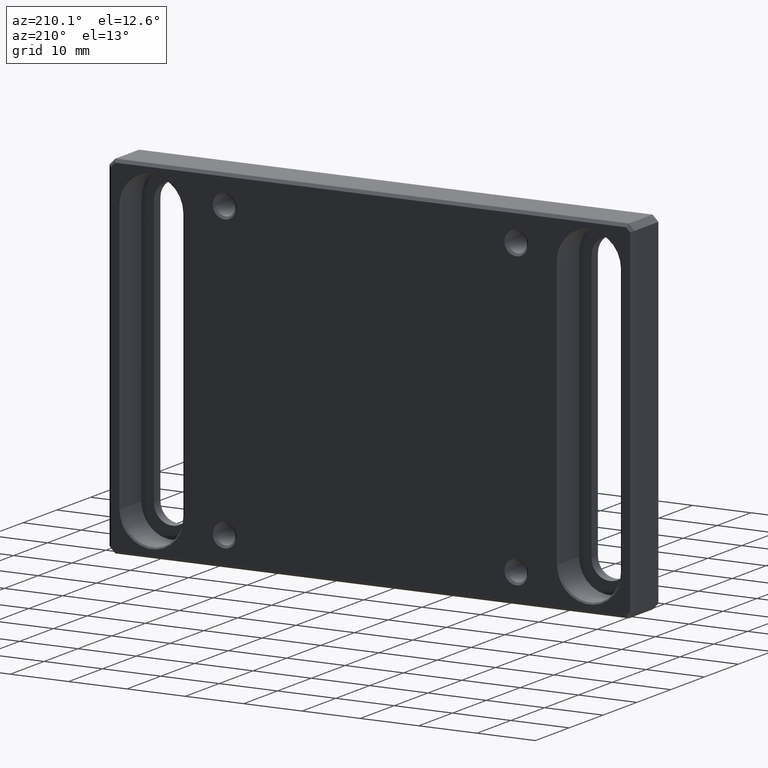
[diagram: clean part render]
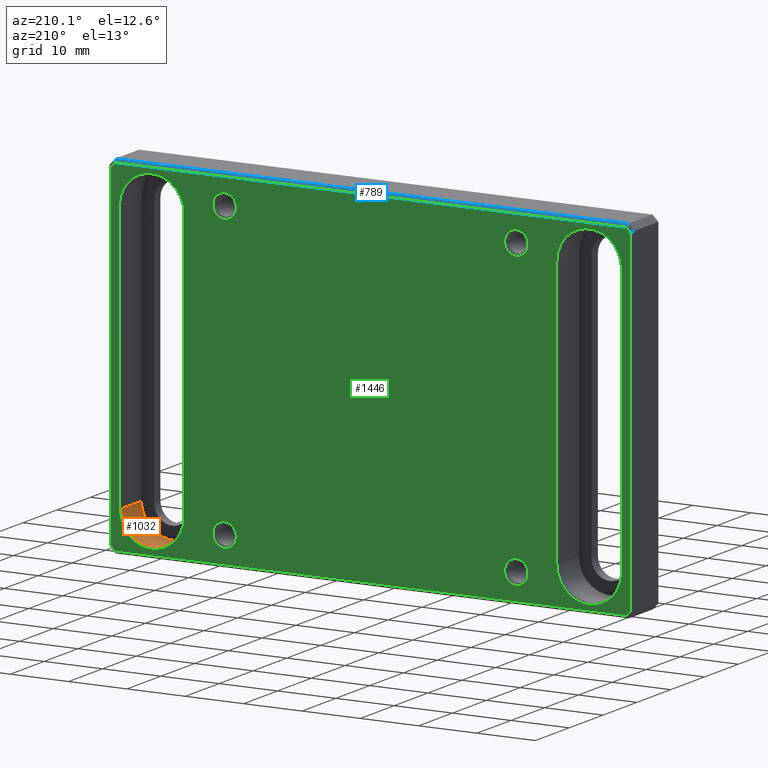
[diagram: same view with three faces highlighted in distinct colors, each labeled with its STEP entity id]
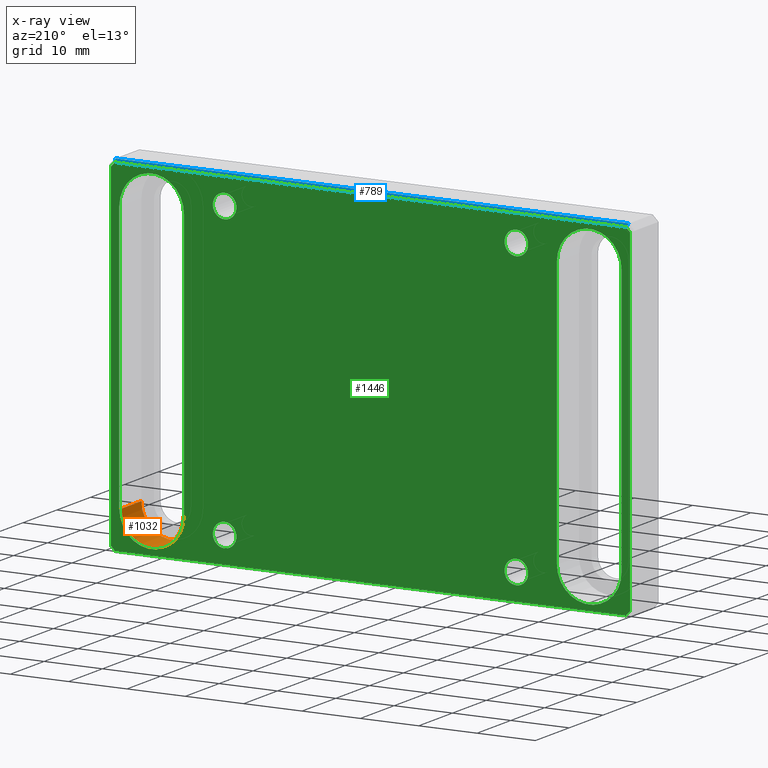
[diagram: x-ray of the same camera — body ghosted, the three highlighted faces saturated]
A machine part, auxiliary view with three faces highlighted in distinct colors.
The next image is the same camera in x-ray (body ghosted, the three faces saturated) — at least one of them is partly hidden behind the body in this view.
Their STEP definitions:

[orange] entity #1032 — the highlighted cylindrical surface (edge-blend (fillet) strip) has radius 5.3 mm, axis along (-0, 1, -0).
#102 = ORIENTED_EDGE ( 'NONE', *, *, #1346, .F. ) ;
#119 = DIRECTION ( 'NONE',  ( -0.000000000000000000, 1.000000000000000000, -0.000000000000000000 ) ) ;
#136 = LINE ( 'NONE', #1702, #1061 ) ;
#154 = CARTESIAN_POINT ( 'NONE',  ( 37.50000000000000711, 1.900000000000000577, -23.00000000000000355 ) ) ;
#168 = CYLINDRICAL_SURFACE ( 'NONE', #1407, 5.299999999999998934 ) ;
#244 = AXIS2_PLACEMENT_3D ( 'NONE', #1457, #1302, #644 ) ;
#419 = VERTEX_POINT ( 'NONE', #949 ) ;
#423 = CARTESIAN_POINT ( 'NONE',  ( 32.20000000000000284, 7.750000000000000000, -23.00000000000000355 ) ) ;
#435 = DIRECTION ( 'NONE',  ( -0.000000000000000000, 1.000000000000000000, -0.000000000000000000 ) ) ;
#551 = AXIS2_PLACEMENT_3D ( 'NONE', #1465, #1582, #1448 ) ;
#562 = FACE_OUTER_BOUND ( 'NONE', #799, .T. ) ;
#599 = ORIENTED_EDGE ( 'NONE', *, *, #957, .T. ) ;
#644 = DIRECTION ( 'NONE',  ( 0.000000000000000000, 0.000000000000000000, 1.000000000000000000 ) ) ;
#799 = EDGE_LOOP ( 'NONE', ( #599, #1041, #833, #102 ) ) ;
#833 = ORIENTED_EDGE ( 'NONE', *, *, #1430, .F. ) ;
#838 = CIRCLE ( 'NONE', #244, 5.299999999999998934 ) ;
#949 = CARTESIAN_POINT ( 'NONE',  ( 42.80000000000000426, 1.900000000000000577, -23.00000000000000355 ) ) ;
#957 = EDGE_CURVE ( 'NONE', #419, #1111, #1330, .T. ) ;
#970 = DIRECTION ( 'NONE',  ( 0.000000000000000000, 0.000000000000000000, 1.000000000000000000 ) ) ;
#1032 = ADVANCED_FACE ( 'NONE', ( #562 ), #168, .F. ) ;
#1040 = CARTESIAN_POINT ( 'NONE',  ( 42.80000000000000426, 1.900000000000000577, -23.00000000000000355 ) ) ;
#1041 = ORIENTED_EDGE ( 'NONE', *, *, #1396, .T. ) ;
#1061 = VECTOR ( 'NONE', #1571, 1000.000000000000000 ) ;
#1111 = VERTEX_POINT ( 'NONE', #1666 ) ;
#1302 = DIRECTION ( 'NONE',  ( 0.000000000000000000, 1.000000000000000000, 0.000000000000000000 ) ) ;
#1330 = LINE ( 'NONE', #1040, #1716 ) ;
#1346 = EDGE_CURVE ( 'NONE', #419, #1665, #838, .T. ) ;
#1396 = EDGE_CURVE ( 'NONE', #1111, #1549, #1498, .T. ) ;
#1407 = AXIS2_PLACEMENT_3D ( 'NONE', #154, #435, #970 ) ;
#1430 = EDGE_CURVE ( 'NONE', #1665, #1549, #136, .T. ) ;
#1448 = DIRECTION ( 'NONE',  ( 0.000000000000000000, 0.000000000000000000, 1.000000000000000000 ) ) ;
#1457 = CARTESIAN_POINT ( 'NONE',  ( 37.50000000000000711, 1.900000000000000577, -23.00000000000000355 ) ) ;
#1465 = CARTESIAN_POINT ( 'NONE',  ( 37.50000000000000711, 7.750000000000000000, -23.00000000000000355 ) ) ;
#1498 = CIRCLE ( 'NONE', #551, 5.299999999999998934 ) ;
#1549 = VERTEX_POINT ( 'NONE', #423 ) ;
#1571 = DIRECTION ( 'NONE',  ( -0.000000000000000000, 1.000000000000000000, -0.000000000000000000 ) ) ;
#1582 = DIRECTION ( 'NONE',  ( 0.000000000000000000, 1.000000000000000000, 0.000000000000000000 ) ) ;
#1665 = VERTEX_POINT ( 'NONE', #1674 ) ;
#1666 = CARTESIAN_POINT ( 'NONE',  ( 42.80000000000000426, 7.750000000000000000, -23.00000000000000355 ) ) ;
#1674 = CARTESIAN_POINT ( 'NONE',  ( 32.20000000000000284, 1.900000000000000577, -23.00000000000000355 ) ) ;
#1702 = CARTESIAN_POINT ( 'NONE',  ( 32.20000000000000284, 1.900000000000000577, -23.00000000000000355 ) ) ;
#1716 = VECTOR ( 'NONE', #119, 1000.000000000000000 ) ;

[blue] entity #789 — the highlighted planar face has unit normal (0, 0.7071, 0.7071).
#14 = CARTESIAN_POINT ( 'NONE',  ( -40.33287919356151008, 16.35321278576449799, 21.14678721423574714 ) ) ;
#222 = ORIENTED_EDGE ( 'NONE', *, *, #535, .T. ) ;
#287 = EDGE_CURVE ( 'NONE', #1012, #1501, #1288, .T. ) ;
#345 = CARTESIAN_POINT ( 'NONE',  ( -43.79289321881346808, 8.000000000000000000, 29.50000000000001066 ) ) ;
#421 = EDGE_CURVE ( 'NONE', #1501, #835, #1715, .T. ) ;
#457 = VECTOR ( 'NONE', #1587, 1000.000000000000000 ) ;
#525 = CARTESIAN_POINT ( 'NONE',  ( 40.33287919356168771, 16.35321278576431681, 21.14678721423592833 ) ) ;
#528 = CARTESIAN_POINT ( 'NONE',  ( 43.79289321881346808, 8.000000000000000000, 29.50000000000001066 ) ) ;
#535 = EDGE_CURVE ( 'NONE', #1012, #1319, #1461, .T. ) ;
#545 = LINE ( 'NONE', #1617, #1240 ) ;
#598 = AXIS2_PLACEMENT_3D ( 'NONE', #1125, #1154, #1686 ) ;
#679 = CARTESIAN_POINT ( 'NONE',  ( -44.00000000000001421, 7.500000000000000000, 30.00000000000000000 ) ) ;
#704 = ORIENTED_EDGE ( 'NONE', *, *, #421, .F. ) ;
#731 = DIRECTION ( 'NONE',  ( 1.000000000000000000, 0.000000000000000000, 0.000000000000000000 ) ) ;
#789 = ADVANCED_FACE ( 'NONE', ( #1145 ), #874, .T. ) ;
#834 = CARTESIAN_POINT ( 'NONE',  ( 44.00000000000001421, 7.500000000000000000, 30.00000000000000000 ) ) ;
#835 = VERTEX_POINT ( 'NONE', #345 ) ;
#874 = PLANE ( 'NONE',  #598 ) ;
#876 = CARTESIAN_POINT ( 'NONE',  ( -44.00000000000001421, 7.500000000000000000, 30.00000000000000000 ) ) ;
#913 = EDGE_LOOP ( 'NONE', ( #222, #1133, #704, #922 ) ) ;
#922 = ORIENTED_EDGE ( 'NONE', *, *, #287, .F. ) ;
#966 = VECTOR ( 'NONE', #1063, 1000.000000000000227 ) ;
#1012 = VERTEX_POINT ( 'NONE', #834 ) ;
#1063 = DIRECTION ( 'NONE',  ( -0.2810846377148129571, 0.6785983445458578789, -0.6785983445458391161 ) ) ;
#1105 = VECTOR ( 'NONE', #1690, 1000.000000000000000 ) ;
#1107 = EDGE_CURVE ( 'NONE', #835, #1319, #545, .T. ) ;
#1125 = CARTESIAN_POINT ( 'NONE',  ( 0.000000000000000000, 8.000000000000000000, 29.50000000000001066 ) ) ;
#1133 = ORIENTED_EDGE ( 'NONE', *, *, #1107, .F. ) ;
#1145 = FACE_OUTER_BOUND ( 'NONE', #913, .T. ) ;
#1154 = DIRECTION ( 'NONE',  ( 0.000000000000000000, 0.7071067811865378028, 0.7071067811865573427 ) ) ;
#1240 = VECTOR ( 'NONE', #731, 1000.000000000000000 ) ;
#1288 = LINE ( 'NONE', #876, #1105 ) ;
#1319 = VERTEX_POINT ( 'NONE', #528 ) ;
#1461 = LINE ( 'NONE', #525, #966 ) ;
#1501 = VERTEX_POINT ( 'NONE', #679 ) ;
#1587 = DIRECTION ( 'NONE',  ( 0.2810846377148197295, 0.6785983445458565466, -0.6785983445458377838 ) ) ;
#1617 = CARTESIAN_POINT ( 'NONE',  ( 43.99999999999998579, 8.000000000000000000, 29.50000000000001066 ) ) ;
#1686 = DIRECTION ( 'NONE',  ( -1.000000000000000000, 0.000000000000000000, 0.000000000000000000 ) ) ;
#1690 = DIRECTION ( 'NONE',  ( -1.000000000000000000, 0.000000000000000000, 0.000000000000000000 ) ) ;
#1715 = LINE ( 'NONE', #14, #457 ) ;

[green] entity #1446 — the highlighted planar face has unit normal (0, 1, 0).
#4 = EDGE_CURVE ( 'NONE', #1124, #259, #246, .T. ) ;
#18 = ORIENTED_EDGE ( 'NONE', *, *, #613, .T. ) ;
#25 = FACE_BOUND ( 'NONE', #871, .T. ) ;
#26 = VERTEX_POINT ( 'NONE', #230 ) ;
#28 = ORIENTED_EDGE ( 'NONE', *, *, #1044, .T. ) ;
#36 = AXIS2_PLACEMENT_3D ( 'NONE', #1031, #101, #61 ) ;
#39 = DIRECTION ( 'NONE',  ( -1.000000000000000000, 0.000000000000000000, 0.000000000000000000 ) ) ;
#47 = LINE ( 'NONE', #1530, #1409 ) ;
#52 = DIRECTION ( 'NONE',  ( 1.156482317317871725E-16, 0.000000000000000000, 1.000000000000000000 ) ) ;
#61 = DIRECTION ( 'NONE',  ( 0.000000000000000000, 0.000000000000000000, 1.000000000000000000 ) ) ;
#65 = CIRCLE ( 'NONE', #710, 2.024999999999999023 ) ;
#78 = LINE ( 'NONE', #1671, #828 ) ;
#101 = DIRECTION ( 'NONE',  ( -0.000000000000000000, -1.000000000000000000, -0.000000000000000000 ) ) ;
#108 = DIRECTION ( 'NONE',  ( 0.7071067811865474617, 0.000000000000000000, 0.7071067811865474617 ) ) ;
#129 = VERTEX_POINT ( 'NONE', #678 ) ;
#138 = ORIENTED_EDGE ( 'NONE', *, *, #1070, .T. ) ;
#156 = CARTESIAN_POINT ( 'NONE',  ( -44.00000000000002132, 8.000000000000000000, -29.50000000000001066 ) ) ;
#159 = VERTEX_POINT ( 'NONE', #464 ) ;
#164 = DIRECTION ( 'NONE',  ( 0.000000000000000000, 0.000000000000000000, 1.000000000000000000 ) ) ;
#179 = DIRECTION ( 'NONE',  ( -3.469446951953614189E-16, 0.000000000000000000, -1.000000000000000000 ) ) ;
#180 = CARTESIAN_POINT ( 'NONE',  ( -44.50000000000002132, 8.000000000000000000, 28.79289321881346098 ) ) ;
#182 = ORIENTED_EDGE ( 'NONE', *, *, #573, .T. ) ;
#184 = EDGE_CURVE ( 'NONE', #934, #891, #47, .T. ) ;
#199 = LINE ( 'NONE', #210, #974 ) ;
#210 = CARTESIAN_POINT ( 'NONE',  ( -36.64644660940674470, 8.000000000000000000, -36.64644660940674470 ) ) ;
#230 = CARTESIAN_POINT ( 'NONE',  ( -43.04999999999999005, 8.000000000000000000, -22.99999999999999645 ) ) ;
#246 = LINE ( 'NONE', #898, #343 ) ;
#251 = EDGE_LOOP ( 'NONE', ( #845, #28, #182, #425 ) ) ;
#259 = VERTEX_POINT ( 'NONE', #1707 ) ;
#263 = EDGE_CURVE ( 'NONE', #1445, #1445, #1106, .T. ) ;
#276 = DIRECTION ( 'NONE',  ( 0.000000000000000000, 0.000000000000000000, 1.000000000000000000 ) ) ;
#294 = DIRECTION ( 'NONE',  ( -0.000000000000000000, -1.000000000000000000, -0.000000000000000000 ) ) ;
#295 = CIRCLE ( 'NONE', #1230, 2.024999999999999023 ) ;
#312 = EDGE_LOOP ( 'NONE', ( #1656 ) ) ;
#324 = VECTOR ( 'NONE', #108, 1000.000000000000114 ) ;
#329 = EDGE_CURVE ( 'NONE', #1319, #934, #78, .T. ) ;
#339 = DIRECTION ( 'NONE',  ( -0.7071067811865474617, 0.000000000000000000, 0.7071067811865474617 ) ) ;
#341 = VECTOR ( 'NONE', #426, 1000.000000000000000 ) ;
#343 = VECTOR ( 'NONE', #1721, 1000.000000000000000 ) ;
#345 = CARTESIAN_POINT ( 'NONE',  ( -43.79289321881346808, 8.000000000000000000, 29.50000000000001066 ) ) ;
#346 = AXIS2_PLACEMENT_3D ( 'NONE', #349, #1435, #868 ) ;
#349 = CARTESIAN_POINT ( 'NONE',  ( -25.00000000000000355, 8.000000000000000000, -24.99999999999999645 ) ) ;
#354 = ORIENTED_EDGE ( 'NONE', *, *, #1576, .T. ) ;
#370 = FACE_BOUND ( 'NONE', #251, .T. ) ;
#372 = VERTEX_POINT ( 'NONE', #620 ) ;
#394 = ORIENTED_EDGE ( 'NONE', *, *, #184, .T. ) ;
#408 = CARTESIAN_POINT ( 'NONE',  ( 44.50000000000000711, 8.000000000000000000, -28.79289321881342190 ) ) ;
#412 = AXIS2_PLACEMENT_3D ( 'NONE', #1521, #869, #482 ) ;
#425 = ORIENTED_EDGE ( 'NONE', *, *, #1178, .T. ) ;
#426 = DIRECTION ( 'NONE',  ( 0.000000000000000000, 0.000000000000000000, -1.000000000000000000 ) ) ;
#428 = LINE ( 'NONE', #156, #433 ) ;
#433 = VECTOR ( 'NONE', #39, 1000.000000000000000 ) ;
#437 = LINE ( 'NONE', #724, #629 ) ;
#448 = DIRECTION ( 'NONE',  ( -0.7071067811865474617, 0.000000000000000000, -0.7071067811865474617 ) ) ;
#449 = EDGE_LOOP ( 'NONE', ( #505 ) ) ;
#464 = CARTESIAN_POINT ( 'NONE',  ( -43.04999999999999005, 8.000000000000000000, 23.00000000000000355 ) ) ;
#482 = DIRECTION ( 'NONE',  ( 0.000000000000000000, 0.000000000000000000, 1.000000000000000000 ) ) ;
#505 = ORIENTED_EDGE ( 'NONE', *, *, #1532, .F. ) ;
#522 = CARTESIAN_POINT ( 'NONE',  ( -37.49999999999997868, 8.000000000000000000, -22.99999999999999645 ) ) ;
#523 = VECTOR ( 'NONE', #1121, 1000.000000000000000 ) ;
#528 = CARTESIAN_POINT ( 'NONE',  ( 43.79289321881346808, 8.000000000000000000, 29.50000000000001066 ) ) ;
#545 = LINE ( 'NONE', #1617, #1240 ) ;
#560 = CARTESIAN_POINT ( 'NONE',  ( 0.000000000000000000, 8.000000000000000000, 0.000000000000000000 ) ) ;
#561 = VERTEX_POINT ( 'NONE', #1104 ) ;
#568 = CIRCLE ( 'NONE', #1466, 5.550000000000013145 ) ;
#572 = CARTESIAN_POINT ( 'NONE',  ( 36.64644660940670917, 8.000000000000000000, -36.64644660940670917 ) ) ;
#573 = EDGE_CURVE ( 'NONE', #1695, #372, #568, .T. ) ;
#592 = EDGE_CURVE ( 'NONE', #1700, #1700, #65, .T. ) ;
#613 = EDGE_CURVE ( 'NONE', #1723, #561, #428, .T. ) ;
#620 = CARTESIAN_POINT ( 'NONE',  ( 43.05000000000001847, 8.000000000000000000, -23.00000000000000355 ) ) ;
#629 = VECTOR ( 'NONE', #52, 1000.000000000000000 ) ;
#645 = ORIENTED_EDGE ( 'NONE', *, *, #1341, .T. ) ;
#648 = ORIENTED_EDGE ( 'NONE', *, *, #4, .T. ) ;
#665 = DIRECTION ( 'NONE',  ( -0.000000000000000000, -1.000000000000000000, -0.000000000000000000 ) ) ;
#670 = EDGE_CURVE ( 'NONE', #1554, #1616, #437, .T. ) ;
#678 = CARTESIAN_POINT ( 'NONE',  ( 43.05000000000001847, 8.000000000000000000, 23.00000000000000355 ) ) ;
#696 = PLANE ( 'NONE',  #1137 ) ;
#705 = LINE ( 'NONE', #954, #341 ) ;
#710 = AXIS2_PLACEMENT_3D ( 'NONE', #973, #843, #164 ) ;
#724 = CARTESIAN_POINT ( 'NONE',  ( -44.50000000000002132, 8.000000000000000000, 28.99999999999999645 ) ) ;
#731 = DIRECTION ( 'NONE',  ( 1.000000000000000000, 0.000000000000000000, 0.000000000000000000 ) ) ;
#742 = EDGE_LOOP ( 'NONE', ( #1117 ) ) ;
#751 = CIRCLE ( 'NONE', #412, 2.024999999999999023 ) ;
#758 = EDGE_CURVE ( 'NONE', #259, #159, #804, .T. ) ;
#765 = CARTESIAN_POINT ( 'NONE',  ( 24.99999999999999645, 8.000000000000000000, -22.97499999999999787 ) ) ;
#798 = VECTOR ( 'NONE', #994, 1000.000000000000000 ) ;
#804 = CIRCLE ( 'NONE', #36, 5.550000000000013145 ) ;
#823 = DIRECTION ( 'NONE',  ( 0.000000000000000000, 0.000000000000000000, 1.000000000000000000 ) ) ;
#828 = VECTOR ( 'NONE', #1148, 1000.000000000000000 ) ;
#835 = VERTEX_POINT ( 'NONE', #345 ) ;
#839 = DIRECTION ( 'NONE',  ( 0.000000000000000000, 1.000000000000000000, 0.000000000000000000 ) ) ;
#843 = DIRECTION ( 'NONE',  ( -0.000000000000000000, 1.000000000000000000, -0.000000000000000000 ) ) ;
#845 = ORIENTED_EDGE ( 'NONE', *, *, #1173, .T. ) ;
#863 = ORIENTED_EDGE ( 'NONE', *, *, #1107, .T. ) ;
#864 = DIRECTION ( 'NONE',  ( -0.000000000000000000, -1.000000000000000000, -0.000000000000000000 ) ) ;
#865 = EDGE_CURVE ( 'NONE', #26, #1124, #1022, .T. ) ;
#868 = DIRECTION ( 'NONE',  ( 0.000000000000000000, 0.000000000000000000, 1.000000000000000000 ) ) ;
#869 = DIRECTION ( 'NONE',  ( -0.000000000000000000, 1.000000000000000000, -0.000000000000000000 ) ) ;
#871 = EDGE_LOOP ( 'NONE', ( #900 ) ) ;
#891 = VERTEX_POINT ( 'NONE', #408 ) ;
#898 = CARTESIAN_POINT ( 'NONE',  ( -31.94999999999996376, 8.000000000000000000, 23.00000000000000355 ) ) ;
#900 = ORIENTED_EDGE ( 'NONE', *, *, #592, .F. ) ;
#904 = CARTESIAN_POINT ( 'NONE',  ( 25.00000000000000355, 8.000000000000000000, 27.02500000000000213 ) ) ;
#907 = FACE_BOUND ( 'NONE', #1100, .T. ) ;
#926 = LINE ( 'NONE', #1440, #324 ) ;
#934 = VERTEX_POINT ( 'NONE', #1704 ) ;
#941 = AXIS2_PLACEMENT_3D ( 'NONE', #522, #665, #276 ) ;
#954 = CARTESIAN_POINT ( 'NONE',  ( 31.94999999999999218, 8.000000000000000000, -23.00000000000000355 ) ) ;
#959 = FACE_BOUND ( 'NONE', #449, .T. ) ;
#964 = CARTESIAN_POINT ( 'NONE',  ( 37.50000000000000711, 8.000000000000000000, -23.00000000000000355 ) ) ;
#969 = ORIENTED_EDGE ( 'NONE', *, *, #865, .T. ) ;
#973 = CARTESIAN_POINT ( 'NONE',  ( 25.00000000000000355, 8.000000000000000000, 25.00000000000000355 ) ) ;
#974 = VECTOR ( 'NONE', #339, 1000.000000000000114 ) ;
#975 = DIRECTION ( 'NONE',  ( -0.000000000000000000, 1.000000000000000000, -0.000000000000000000 ) ) ;
#994 = DIRECTION ( 'NONE',  ( 0.000000000000000000, 0.000000000000000000, 1.000000000000000000 ) ) ;
#998 = ORIENTED_EDGE ( 'NONE', *, *, #1588, .T. ) ;
#1011 = CARTESIAN_POINT ( 'NONE',  ( 37.50000000000000711, 8.000000000000000000, 23.00000000000000355 ) ) ;
#1022 = CIRCLE ( 'NONE', #941, 5.550000000000013145 ) ;
#1031 = CARTESIAN_POINT ( 'NONE',  ( -37.49999999999997868, 8.000000000000000000, 23.00000000000000355 ) ) ;
#1034 = VERTEX_POINT ( 'NONE', #765 ) ;
#1043 = VERTEX_POINT ( 'NONE', #1298 ) ;
#1044 = EDGE_CURVE ( 'NONE', #1653, #1695, #705, .T. ) ;
#1070 = EDGE_CURVE ( 'NONE', #891, #1723, #1094, .T. ) ;
#1094 = LINE ( 'NONE', #572, #1352 ) ;
#1100 = EDGE_LOOP ( 'NONE', ( #1460, #354, #969, #648 ) ) ;
#1102 = CIRCLE ( 'NONE', #1325, 5.550000000000013145 ) ;
#1104 = CARTESIAN_POINT ( 'NONE',  ( -43.79289321881348940, 8.000000000000000000, -29.50000000000001066 ) ) ;
#1106 = CIRCLE ( 'NONE', #346, 2.024999999999999023 ) ;
#1107 = EDGE_CURVE ( 'NONE', #835, #1319, #545, .T. ) ;
#1108 = FACE_BOUND ( 'NONE', #312, .T. ) ;
#1113 = CARTESIAN_POINT ( 'NONE',  ( -44.50000000000002842, 8.000000000000000000, -28.79289321881347163 ) ) ;
#1117 = ORIENTED_EDGE ( 'NONE', *, *, #263, .F. ) ;
#1121 = DIRECTION ( 'NONE',  ( 0.000000000000000000, 0.000000000000000000, -1.000000000000000000 ) ) ;
#1124 = VERTEX_POINT ( 'NONE', #1273 ) ;
#1130 = CARTESIAN_POINT ( 'NONE',  ( 31.94999999999999218, 8.000000000000000000, 23.00000000000000355 ) ) ;
#1132 = DIRECTION ( 'NONE',  ( 0.000000000000000000, 0.000000000000000000, 1.000000000000000000 ) ) ;
#1137 = AXIS2_PLACEMENT_3D ( 'NONE', #560, #839, #1231 ) ;
#1148 = DIRECTION ( 'NONE',  ( 0.7071067811865426878, 0.000000000000000000, -0.7071067811865524577 ) ) ;
#1173 = EDGE_CURVE ( 'NONE', #129, #1653, #1102, .T. ) ;
#1178 = EDGE_CURVE ( 'NONE', #372, #129, #1262, .T. ) ;
#1198 = CARTESIAN_POINT ( 'NONE',  ( 43.79289321881341124, 8.000000000000000000, -29.50000000000001066 ) ) ;
#1220 = ORIENTED_EDGE ( 'NONE', *, *, #329, .T. ) ;
#1230 = AXIS2_PLACEMENT_3D ( 'NONE', #1615, #975, #823 ) ;
#1231 = DIRECTION ( 'NONE',  ( 0.000000000000000000, -0.000000000000000000, 1.000000000000000000 ) ) ;
#1240 = VECTOR ( 'NONE', #731, 1000.000000000000000 ) ;
#1246 = FACE_BOUND ( 'NONE', #742, .T. ) ;
#1262 = LINE ( 'NONE', #1292, #798 ) ;
#1273 = CARTESIAN_POINT ( 'NONE',  ( -31.94999999999996376, 8.000000000000000000, -22.99999999999999645 ) ) ;
#1292 = CARTESIAN_POINT ( 'NONE',  ( 43.05000000000001847, 8.000000000000000000, 23.00000000000000355 ) ) ;
#1298 = CARTESIAN_POINT ( 'NONE',  ( -24.99999999999999645, 8.000000000000000000, 27.02500000000000213 ) ) ;
#1308 = CARTESIAN_POINT ( 'NONE',  ( 31.94999999999999218, 8.000000000000000000, -23.00000000000000355 ) ) ;
#1319 = VERTEX_POINT ( 'NONE', #528 ) ;
#1325 = AXIS2_PLACEMENT_3D ( 'NONE', #1011, #864, #1132 ) ;
#1341 = EDGE_CURVE ( 'NONE', #1616, #835, #926, .T. ) ;
#1347 = EDGE_LOOP ( 'NONE', ( #1493, #645, #863, #1220, #394, #138, #18, #998 ) ) ;
#1352 = VECTOR ( 'NONE', #448, 1000.000000000000114 ) ;
#1409 = VECTOR ( 'NONE', #179, 1000.000000000000000 ) ;
#1435 = DIRECTION ( 'NONE',  ( -0.000000000000000000, 1.000000000000000000, -0.000000000000000000 ) ) ;
#1440 = CARTESIAN_POINT ( 'NONE',  ( -36.64644660940673759, 8.000000000000000000, 36.64644660940673759 ) ) ;
#1445 = VERTEX_POINT ( 'NONE', #1717 ) ;
#1446 = ADVANCED_FACE ( 'NONE', ( #370, #907, #1246, #959, #25, #1108, #1474 ), #696, .T. ) ;
#1460 = ORIENTED_EDGE ( 'NONE', *, *, #758, .T. ) ;
#1466 = AXIS2_PLACEMENT_3D ( 'NONE', #964, #294, #1486 ) ;
#1474 = FACE_OUTER_BOUND ( 'NONE', #1347, .T. ) ;
#1486 = DIRECTION ( 'NONE',  ( 0.000000000000000000, 0.000000000000000000, 1.000000000000000000 ) ) ;
#1493 = ORIENTED_EDGE ( 'NONE', *, *, #670, .T. ) ;
#1521 = CARTESIAN_POINT ( 'NONE',  ( -24.99999999999999645, 8.000000000000000000, 25.00000000000000355 ) ) ;
#1530 = CARTESIAN_POINT ( 'NONE',  ( 44.50000000000000711, 8.000000000000000000, -28.99999999999998579 ) ) ;
#1532 = EDGE_CURVE ( 'NONE', #1034, #1034, #295, .T. ) ;
#1553 = CARTESIAN_POINT ( 'NONE',  ( -43.04999999999999005, 8.000000000000000000, -22.99999999999999645 ) ) ;
#1554 = VERTEX_POINT ( 'NONE', #1113 ) ;
#1576 = EDGE_CURVE ( 'NONE', #159, #26, #1644, .T. ) ;
#1588 = EDGE_CURVE ( 'NONE', #561, #1554, #199, .T. ) ;
#1599 = EDGE_CURVE ( 'NONE', #1043, #1043, #751, .T. ) ;
#1615 = CARTESIAN_POINT ( 'NONE',  ( 24.99999999999999645, 8.000000000000000000, -24.99999999999999645 ) ) ;
#1616 = VERTEX_POINT ( 'NONE', #180 ) ;
#1617 = CARTESIAN_POINT ( 'NONE',  ( 43.99999999999998579, 8.000000000000000000, 29.50000000000001066 ) ) ;
#1644 = LINE ( 'NONE', #1553, #523 ) ;
#1653 = VERTEX_POINT ( 'NONE', #1130 ) ;
#1656 = ORIENTED_EDGE ( 'NONE', *, *, #1599, .F. ) ;
#1671 = CARTESIAN_POINT ( 'NONE',  ( 36.64644660940703602, 8.000000000000000000, 36.64644660940653154 ) ) ;
#1695 = VERTEX_POINT ( 'NONE', #1308 ) ;
#1700 = VERTEX_POINT ( 'NONE', #904 ) ;
#1704 = CARTESIAN_POINT ( 'NONE',  ( 44.50000000000002842, 8.000000000000000000, 28.79289321881344677 ) ) ;
#1707 = CARTESIAN_POINT ( 'NONE',  ( -31.94999999999996376, 8.000000000000000000, 23.00000000000000355 ) ) ;
#1717 = CARTESIAN_POINT ( 'NONE',  ( -25.00000000000000355, 8.000000000000000000, -22.97499999999999787 ) ) ;
#1721 = DIRECTION ( 'NONE',  ( 0.000000000000000000, 0.000000000000000000, 1.000000000000000000 ) ) ;
#1723 = VERTEX_POINT ( 'NONE', #1198 ) ;